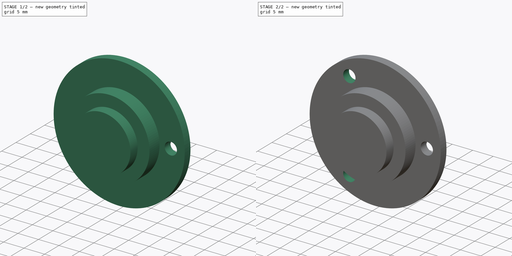
[diagram: build sequence overview — one tinted view per stage of 2, left to right]
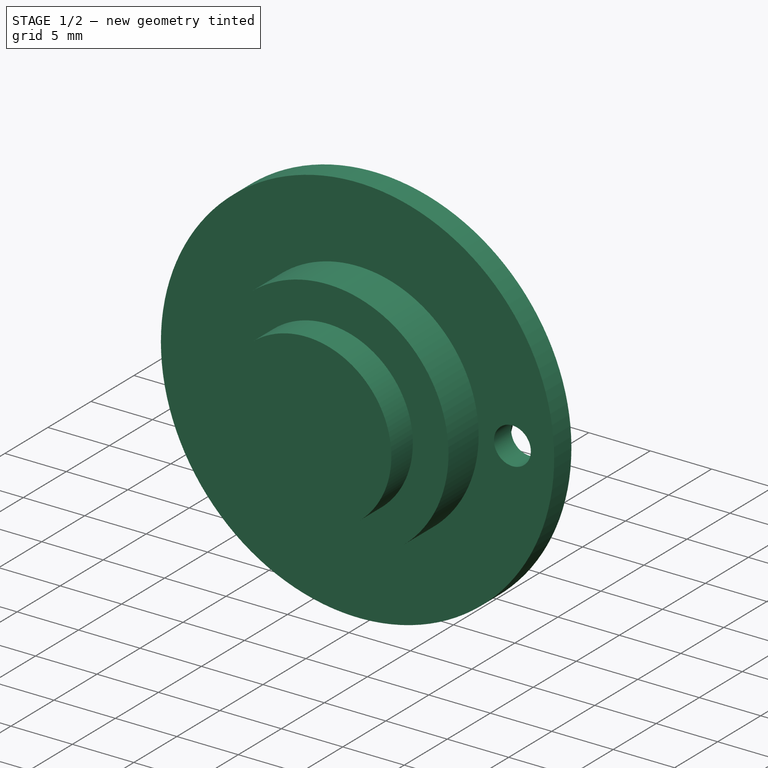
[diagram: stage 1 of 2 — iso view after this stage's code; geometry added in this stage tinted green]
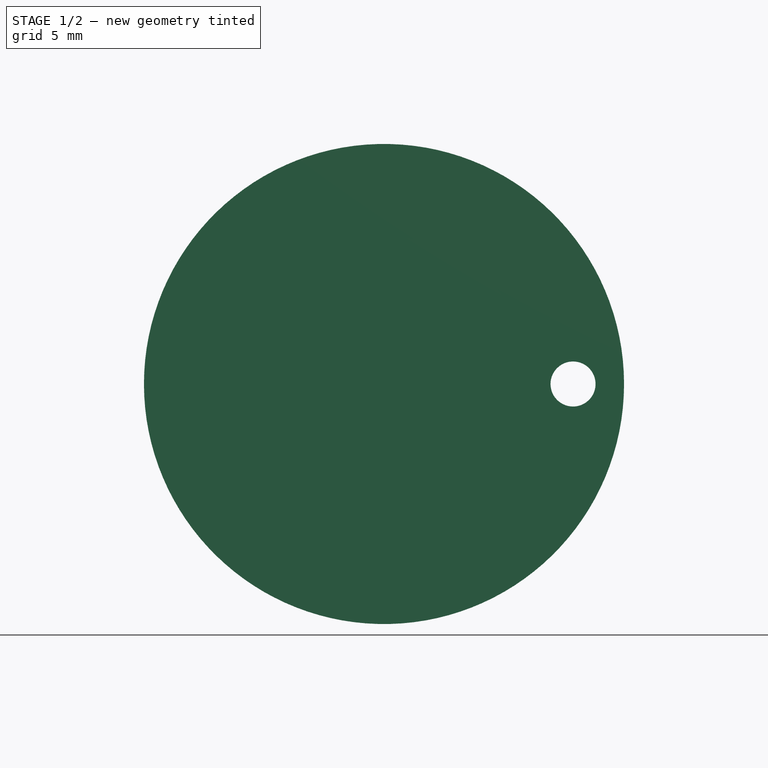
[diagram: stage 1 of 2 — front view after this stage's code; geometry added in this stage tinted green]
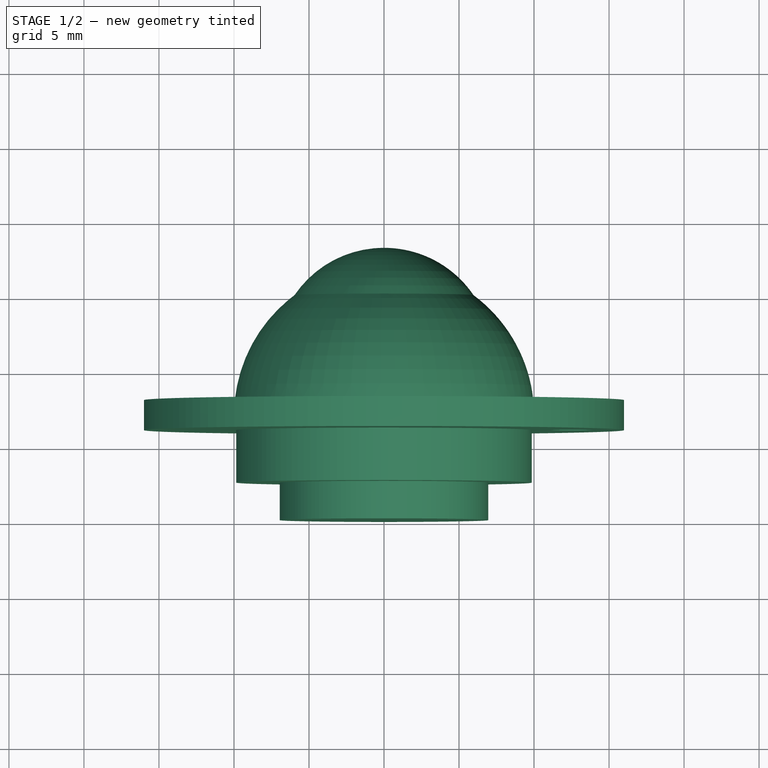
[diagram: stage 1 of 2 — top view after this stage's code; geometry added in this stage tinted green]
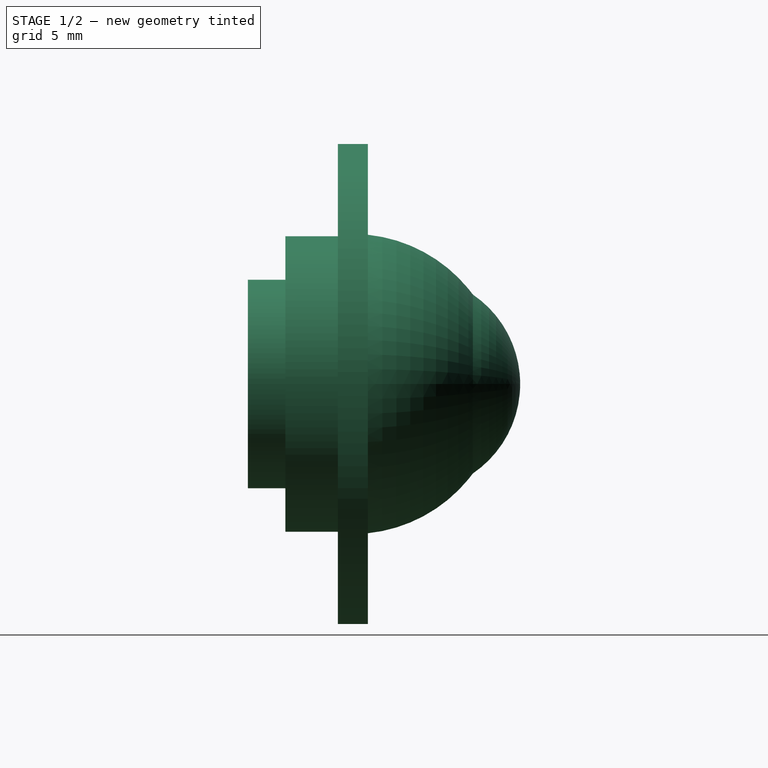
[diagram: stage 1 of 2 — right view after this stage's code; geometry added in this stage tinted green]
FCSTD DOCUMENT  (FreeCAD 0.16R6707 (Git))
Label: bille
License: All rights reserved
LicenseURL: http://en.wikipedia.org/wiki/All_rights_reserved
objects: Sketcher::SketchObject×2, PartDesign::Revolution×1, PartDesign::Pocket×1, PartDesign::PolarPattern×1
note: 7 computed .brp shape members not serialized (recipe doc carries the construction recipe); baked Part::Feature solids carry a one-line shape summary decoded from their .brp

FEATURE [Sketcher::SketchObject] Sketch
  sketch-geometry (13):
    g0: LineSegment StartX=0 StartY=0 StartZ=0 EndX=0 EndY=18.15 EndZ=0
    g1: LineSegment StartX=0 StartY=0 StartZ=0 EndX=6.95 EndY=0 EndZ=0
    g2: LineSegment StartX=6.95 StartY=0 StartZ=0 EndX=6.95 EndY=2.5 EndZ=0
    g3: LineSegment StartX=6.95 StartY=2.5 StartZ=0 EndX=9.85 EndY=2.5 EndZ=0
    g4: LineSegment StartX=9.85 StartY=2.5 StartZ=0 EndX=9.85 EndY=6 EndZ=0
    g5: LineSegment StartX=9.85 StartY=6 StartZ=0 EndX=16 EndY=6 EndZ=0
    g6: LineSegment StartX=16 StartY=6 StartZ=0 EndX=16 EndY=8 EndZ=0
    g7: GeomPoint [constr] X=5.96381 Y=15 Z=0
    g8: GeomPoint [constr] X=0.00427062 Y=6.96981 Z=0
    g9: ArcOfCircle CenterX=0.00427062 CenterY=6.96981 CenterZ=0 NormalX=0 NormalY=0 NormalZ=1 Radius=10 StartAngle=0.103202 EndAngle=0.932343
    g10: LineSegment StartX=9.95106 StartY=8 StartZ=0 EndX=16 EndY=8 EndZ=0
    g11: GeomPoint [constr] X=0.0128087 Y=10.9537 Z=0
    g12: ArcOfCircle CenterX=0.0128087 CenterY=10.9537 CenterZ=0 NormalX=0 NormalY=0 NormalZ=1 Radius=7.19632 StartAngle=0.597134 EndAngle=1.57258
  constraints (32):
    c: Coincident(g0,g-1)
    c: PointOnObject(g0,g-2)
    c: Distance(g0) = 18.15
    c: Coincident(g1,g-1)
    c: Horizontal(g1)
    c: Distance(g1) = 6.95
    c: Coincident(g2,g1)
    c: Vertical(g2)
    c: Distance(g2) = 2.5
    c: Coincident(g3,g2)
    c: Horizontal(g3)
    c: Coincident(g4,g3)
    c: Vertical(g4)
    c: Distance(g4) = 3.5
    c: Distance(g3) = 2.9
    c: Coincident(g5,g4)
    c: Horizontal(g5)
    c: Coincident(g6,g5)
    c: Vertical(g6)
    c: Distance(g6) = 2
    c: Distance(g5) = 6.15
    c: Distance(g7,g8) = 10
    c: Coincident(g9,g8)
    c: Coincident(g9,g7)
    c: Coincident(g10,g9)
    c: Coincident(g10,g6)
    c: Horizontal(g10)
    c: DistanceY(g7) = 15
    c: DistanceX(g7) = 5.96381
    c: Coincident(g12,g11)
    c: Coincident(g12,g7)
    c: Coincident(g12,g0)
FEATURE [PartDesign::Revolution] Revolution
  Angle = 360
  Axis = (0,1,0)
  Base = (0,0,0)
  ReferenceAxis = -> Sketch [V_Axis]
  Reversed = true
  Sketch = -> Sketch
FEATURE [Sketcher::SketchObject] Sketch001
  Placement = pos=(0,6,0) rot=(1,0,0;1.5708rad)
  Support = -> Revolution [Face3]
  sketch-geometry (2):
    g0: GeomPoint [constr] X=12.6 Y=0 Z=0
    g1: Circle CenterX=12.6 CenterY=0 CenterZ=0 NormalX=0 NormalY=0 NormalZ=1 Radius=1.5
  constraints (4):
    c: PointOnObject(g0,g-1)
    c: DistanceX(g0) = 12.6
    c: Coincident(g1,g0)
    c: Radius(g1) = 1.5
FEATURE [PartDesign::Pocket] Pocket
  Length = 5
  Sketch = -> Sketch001
  Type = 1
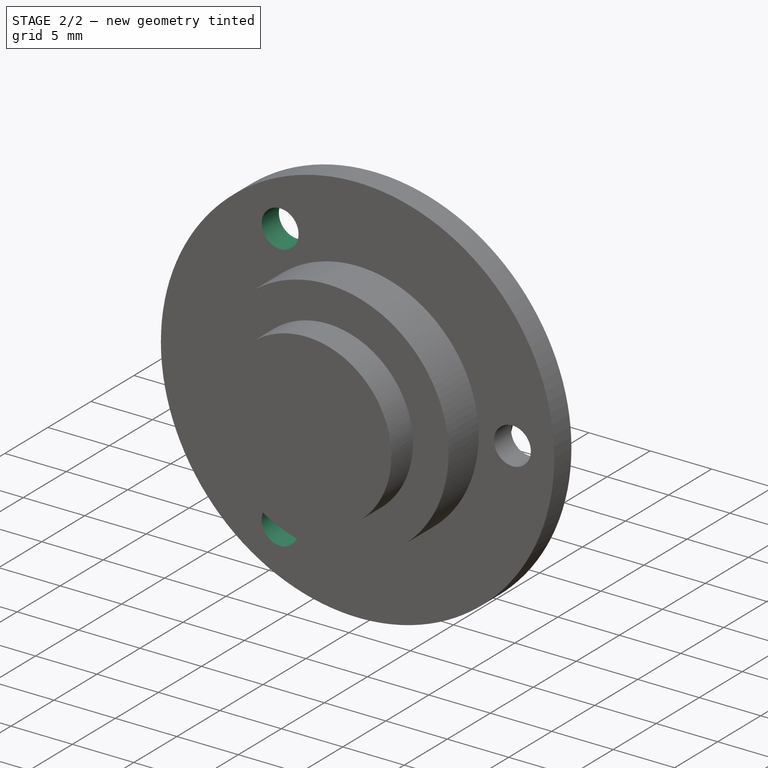
[diagram: stage 2 of 2 — iso view after this stage's code; geometry added in this stage tinted green]
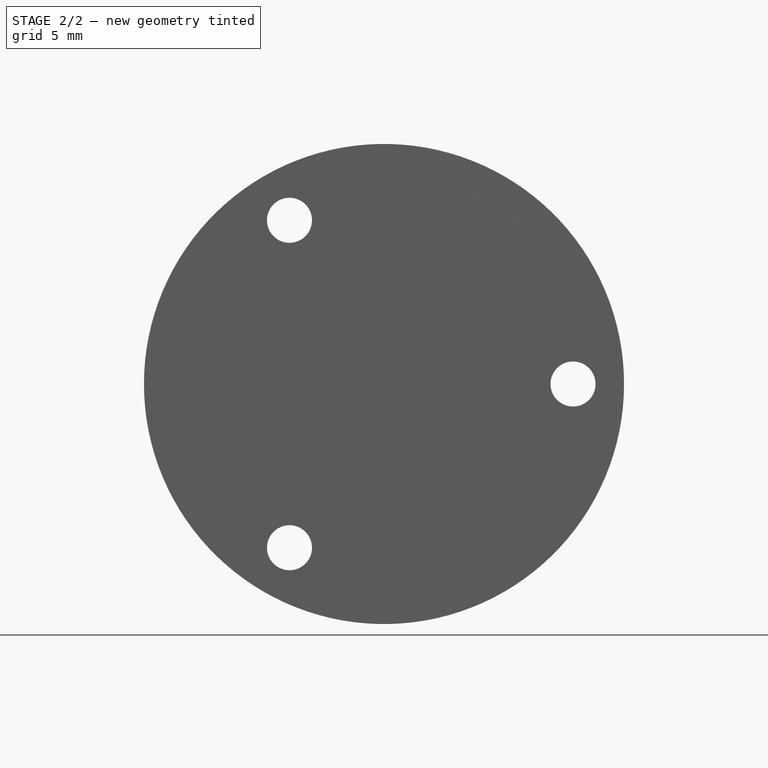
[diagram: stage 2 of 2 — front view after this stage's code; geometry added in this stage tinted green]
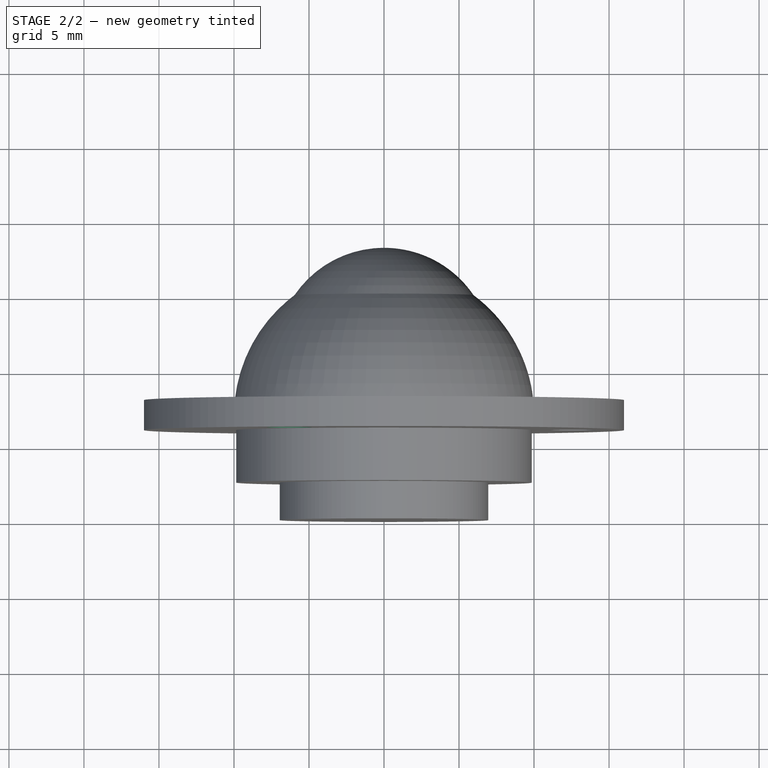
[diagram: stage 2 of 2 — top view after this stage's code; geometry added in this stage tinted green]
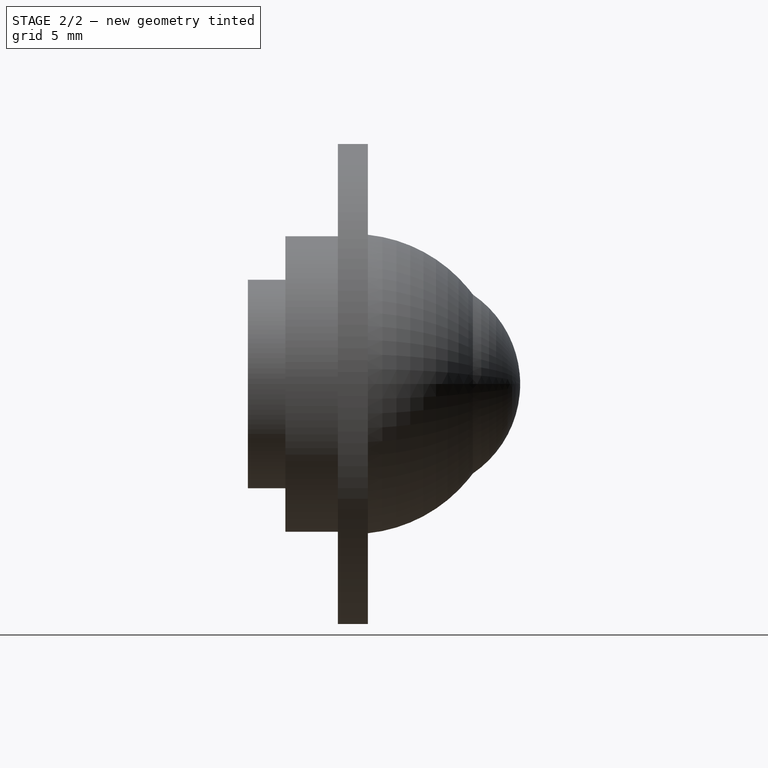
[diagram: stage 2 of 2 — right view after this stage's code; geometry added in this stage tinted green]
FEATURE [PartDesign::PolarPattern] PolarPattern
  Angle = 360
  Axis = -> Sketch001 [N_Axis]
  Occurrences = 3
  Originals = -> [Pocket]
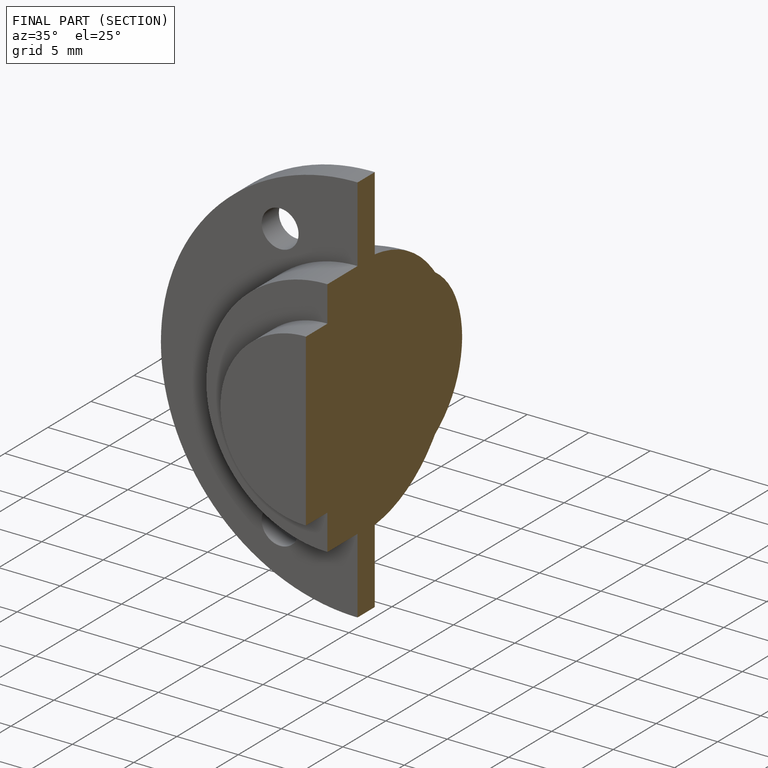
[diagram: finished part — half-section view (interior)]
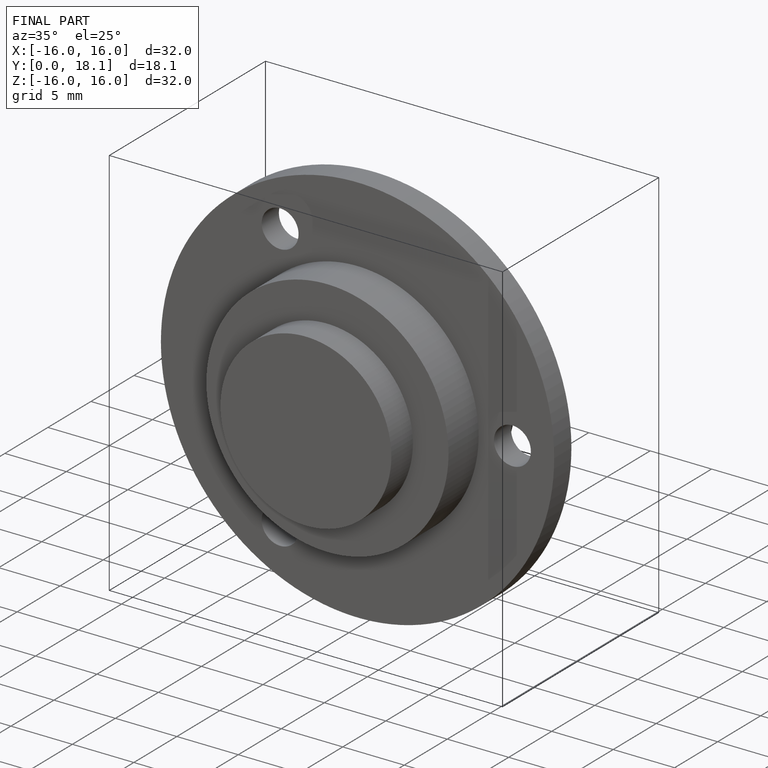
[diagram: finished part — iso view with bounding-box wireframe]
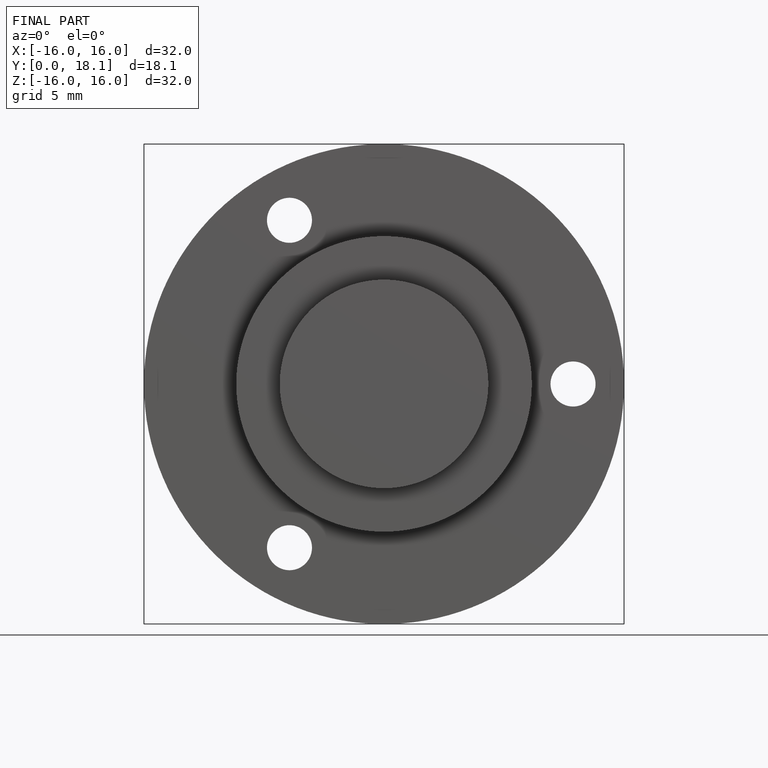
[diagram: finished part — front view with bounding-box wireframe]
